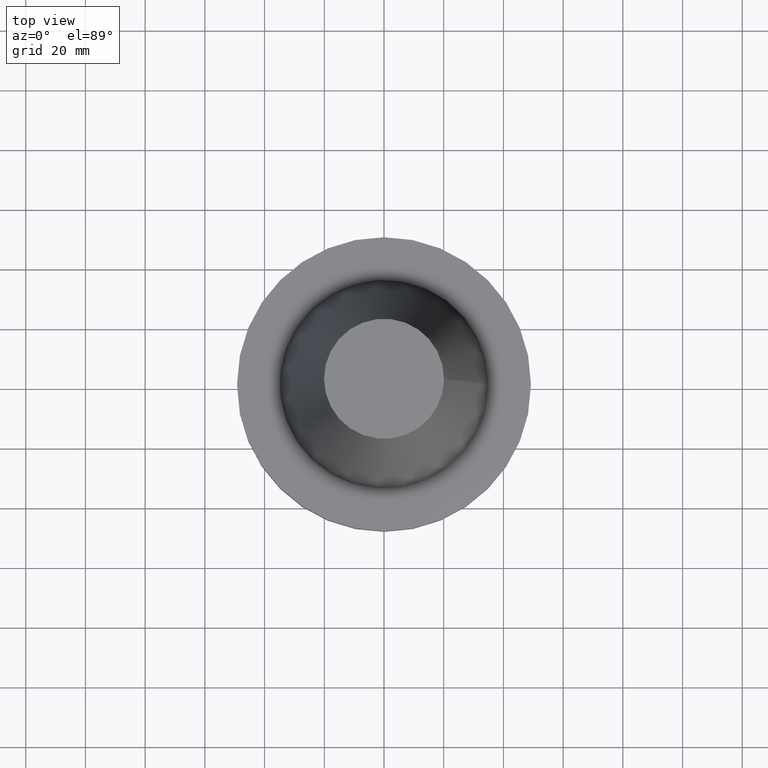
[diagram: clean part render]
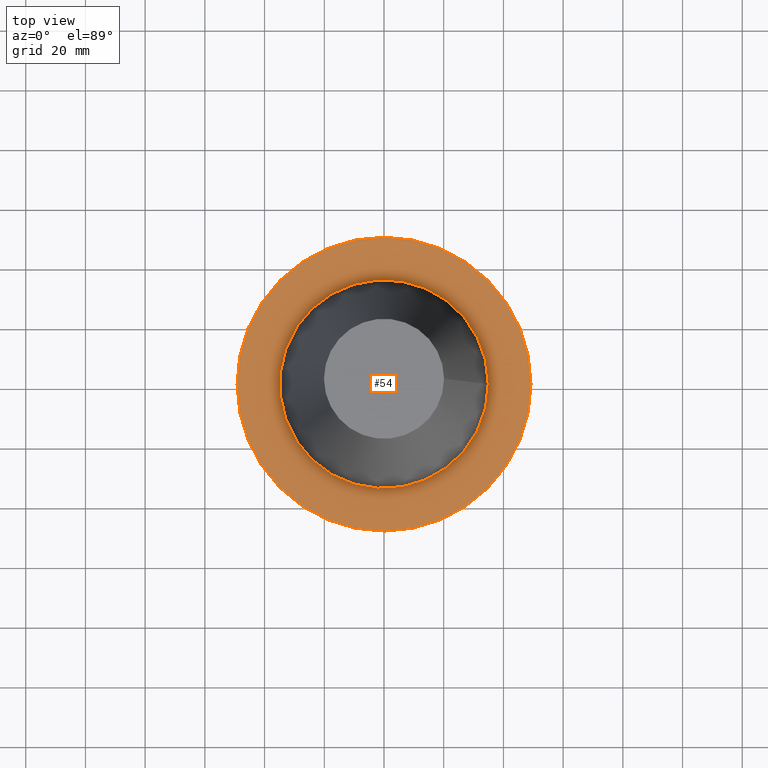
[diagram: same view with one face highlighted and labeled with its STEP entity id]
A machine part, top view. The second image highlights one B-rep face of the part: STEP entity #54.
In plain terms, the highlighted planar face has unit normal (0, 0, -1).
Its self-contained STEP definition (entity closure, byte-faithful):
#13 = DIRECTION ( 'NONE',  ( -0.000000000000000000, -0.000000000000000000, 1.000000000000000000 ) ) ;
#44 = VERTEX_POINT ( 'NONE', #133 ) ;
#46 = EDGE_LOOP ( 'NONE', ( #147 ) ) ;
#50 = DIRECTION ( 'NONE',  ( -1.000000000000000000, 0.000000000000000000, -0.000000000000000000 ) ) ;
#54 = ADVANCED_FACE ( 'NONE', ( #189, #230 ), #322, .F. ) ;
#81 = EDGE_CURVE ( 'NONE', #44, #44, #379, .T. ) ;
#133 = CARTESIAN_POINT ( 'NONE',  ( 49.21499999999999631, 0.000000000000000000, -1.499999999999987566 ) ) ;
#136 = CARTESIAN_POINT ( 'NONE',  ( 34.92499999999999005, 0.000000000000000000, -1.499999999999987566 ) ) ;
#147 = ORIENTED_EDGE ( 'NONE', *, *, #389, .F. ) ;
#168 = DIRECTION ( 'NONE',  ( -0.000000000000000000, -0.000000000000000000, 1.000000000000000000 ) ) ;
#189 = FACE_BOUND ( 'NONE', #46, .T. ) ;
#191 = AXIS2_PLACEMENT_3D ( 'NONE', #321, #202, #50 ) ;
#202 = DIRECTION ( 'NONE',  ( 0.000000000000000000, 0.000000000000000000, -1.000000000000000000 ) ) ;
#230 = FACE_OUTER_BOUND ( 'NONE', #299, .T. ) ;
#244 = DIRECTION ( 'NONE',  ( 1.000000000000000000, 0.000000000000000000, 0.000000000000000000 ) ) ;
#245 = CIRCLE ( 'NONE', #303, 34.92499999999999005 ) ;
#270 = AXIS2_PLACEMENT_3D ( 'NONE', #290, #168, #387 ) ;
#278 = CARTESIAN_POINT ( 'NONE',  ( 0.000000000000000000, 0.000000000000000000, -1.499999999999987566 ) ) ;
#290 = CARTESIAN_POINT ( 'NONE',  ( 0.000000000000000000, 0.000000000000000000, -1.499999999999987566 ) ) ;
#299 = EDGE_LOOP ( 'NONE', ( #328 ) ) ;
#303 = AXIS2_PLACEMENT_3D ( 'NONE', #278, #13, #244 ) ;
#321 = CARTESIAN_POINT ( 'NONE',  ( 0.000000000000000000, 49.21499999999999631, -1.499999999999992895 ) ) ;
#322 = PLANE ( 'NONE',  #191 ) ;
#328 = ORIENTED_EDGE ( 'NONE', *, *, #81, .T. ) ;
#351 = VERTEX_POINT ( 'NONE', #136 ) ;
#379 = CIRCLE ( 'NONE', #270, 49.21499999999999631 ) ;
#387 = DIRECTION ( 'NONE',  ( 1.000000000000000000, 0.000000000000000000, 0.000000000000000000 ) ) ;
#389 = EDGE_CURVE ( 'NONE', #351, #351, #245, .T. ) ;